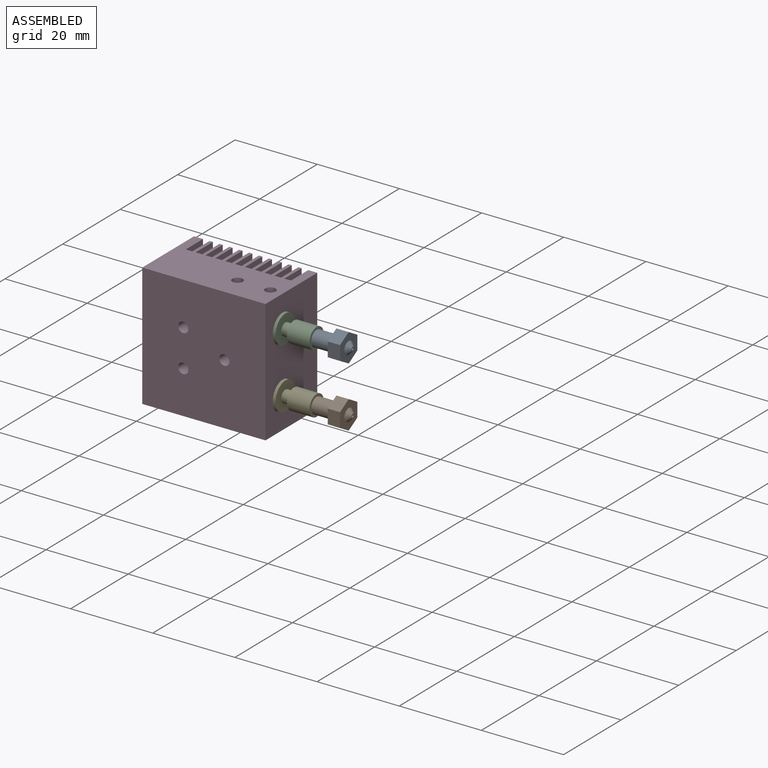
[diagram: assembled view]
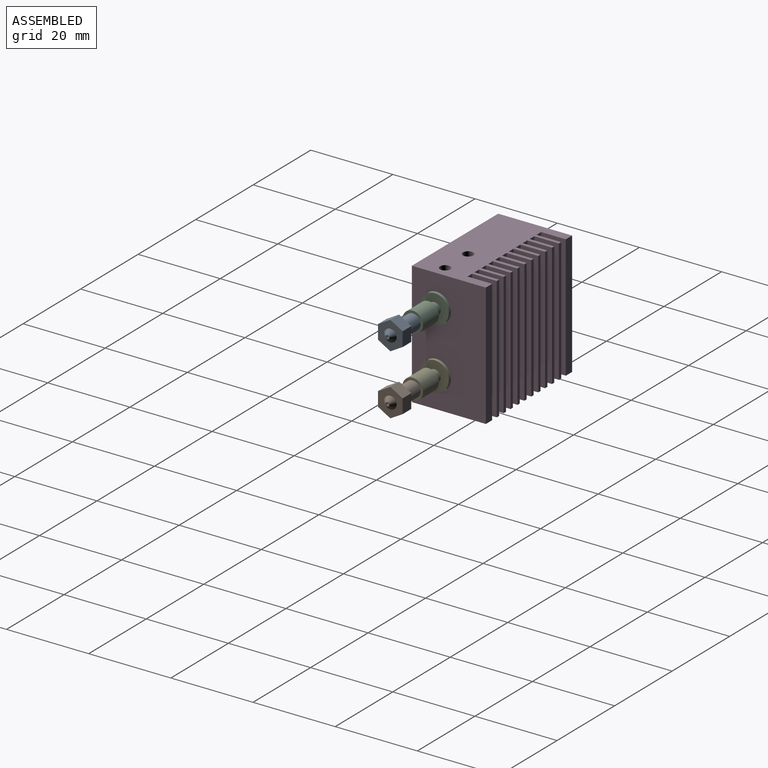
[diagram: assembled view, second angle]
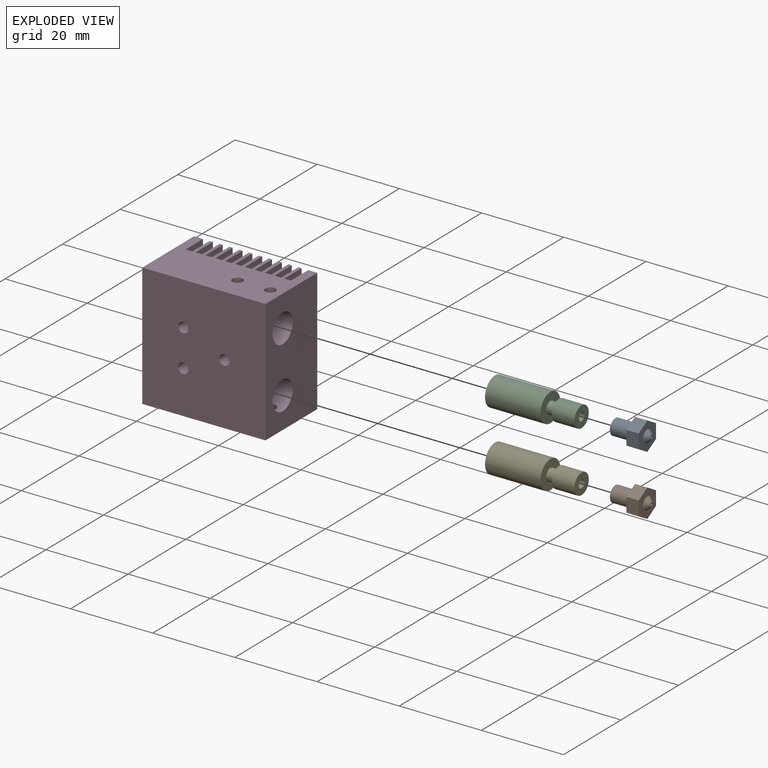
[diagram: exploded view]
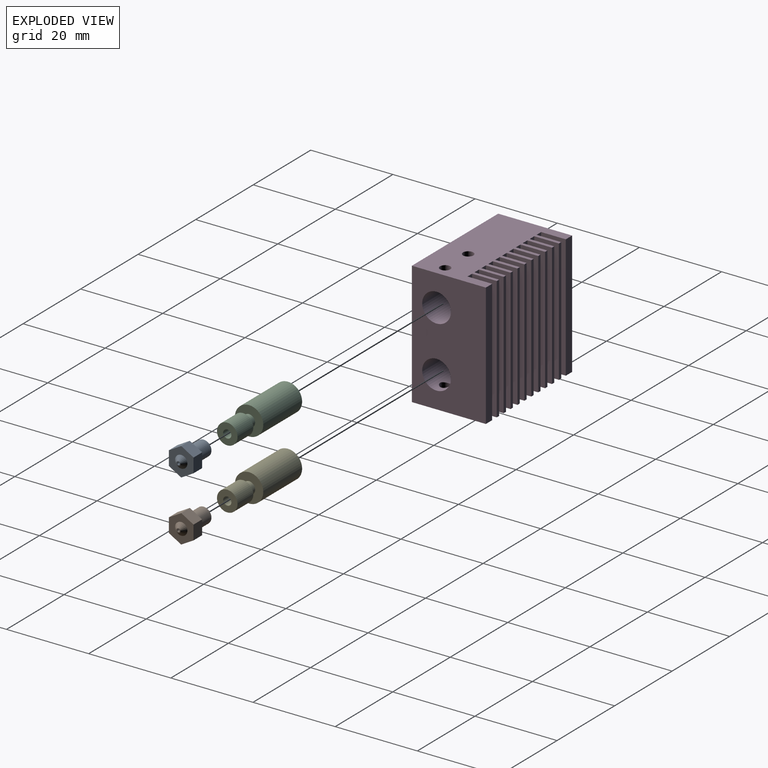
[diagram: exploded view, second angle]
ASSEMBLY  parts=5 mates=4
PART A: 15 faces, bbox 6.9x6x8.8 mm
  f0: plane 3x3mm, normal (0.87,0.5,0), area 10.4mm2, adj f1,f5,f6,f7
  f1: plane 3.46x3mm, normal (0,1,0), area 10.4mm2, adj f0,f2,f6,f7
  f2: plane 3x3mm, normal (-0.87,0.5,0), area 10.4mm2, adj f1,f3,f6,f7
  f3: plane 3x3mm, normal (-0.87,-0.5,0), area 10.4mm2, adj f2,f4,f6,f7
  f4: plane 3.46x3mm, normal (0,-1,0), area 10.4mm2, adj f3,f5,f6,f7
  f5: plane 3x3mm, normal (0.87,-0.5,0), area 10.4mm2, adj f0,f4,f6,f7
  f6: plane 6.93x6mm, normal (0,0,-1), area 24mm2, adj f0,f1,f2,f3,f4,f5,f14
  f7: plane 6.93x6mm, normal (0,0,1), area 19.8mm2, adj f0,f1,f2,f3,f4,f5,f8
  f8: cylinder r=1.9mm len=4.8mm, axis (0,0,-1), area 57.3mm2, adj f7,f9
  f9: plane 3.8x3.8mm, normal (0,0,1), area 9.6mm2, adj f8,f10
  f10: cylinder r=0.75mm len=7.8mm, axis (0,0,1), area 36.8mm2, adj f9,f13
  f11: cylinder r=0.3mm len=1mm, axis (0,0,1), area 1.9mm2, adj f12,f13
  f12: plane 1.02x1.02mm, normal (0,0,-1), area 0.5mm2, adj f11,f14
  f13: plane 1.5x1.5mm, normal (0,0,1), area 1.5mm2, adj f10,f11
  f14: cone r=0.51mm half-angle=45deg, axis (0,0,1), area 9mm2, adj f6,f12
PART B: same geometry as A
PART C: 10 faces, bbox 6.9x6.9x21.1 mm
  f0: cone r=0mm half-angle=59deg, axis (0,0,1), area 12.5mm2, adj f8,f9
  f1: cylinder r=3.45mm len=13.5mm, axis (0,0,-1), area 292.6mm2, adj f2,f3
  f2: plane 6.9x6.9mm, normal (0,0,1), area 23.5mm2, adj f1,f8
  f3: plane 6.9x6.9mm, normal (0,0,-1), area 30.6mm2, adj f1,f4
  f4: cylinder r=1.47mm len=2.95mm, axis (0,0,1), area 19.5mm2, adj f3,f7
  f5: cylinder r=2.5mm len=5.5mm, axis (0,0,1), area 86.4mm2, adj f6,f7
  f6: plane 5x5mm, normal (0,0,-1), area 16.5mm2, adj f5,f9
  f7: plane 5x5mm, normal (0,0,1), area 12.8mm2, adj f4,f5
  f8: cylinder r=2.1mm len=4.2mm, axis (0,0,1), area 52.8mm2, adj f0,f2
  f9: cylinder r=1mm len=16.44mm, axis (0,0,1), area 103.3mm2, adj f0,f6
PART D: 70 faces, bbox 30x18x30 mm
  f0: cylinder r=3.5mm len=14mm, axis (1,0,0), area 297.9mm2, adj f26,f58,f68,f69
  f1: cylinder r=3.5mm len=14mm, axis (1,0,0), area 297.9mm2, adj f26,f59,f66,f67
  f2: cylinder r=2.1mm len=7.52mm, axis (-1,0,0), area 94.7mm2, adj f5,f59,f65
  f3: cylinder r=2.1mm len=7.52mm, axis (-1,0,0), area 94.7mm2, adj f4,f58,f63
  f4: cone r=0mm half-angle=59deg, axis (-1,0,0), area 42.5mm2, adj f3,f56
  f5: cone r=0mm half-angle=59deg, axis (-1,0,0), area 42.5mm2, adj f2,f57
  f6: plane 30x6mm, normal (1,0,0), area 180mm2, adj f7,f53,f54,f55
  f7: plane 30x0.8mm, normal (0,1,0), area 24mm2, adj f6,f8,f54,f55
  f8: plane 30x6mm, normal (-1,0,0), area 180mm2, adj f7,f9,f54,f55
  f9: plane 30x1.6mm, normal (0,1,0), area 48mm2, adj f8,f10,f54,f55
  f10: plane 30x6mm, normal (1,0,0), area 180mm2, adj f9,f11,f54,f55
  f11: plane 30x0.8mm, normal (0,1,0), area 24mm2, adj f10,f12,f54,f55
  f12: plane 30x6mm, normal (-1,0,0), area 180mm2, adj f11,f13,f54,f55
  f13: plane 30x1.6mm, normal (0,1,0), area 48mm2, adj f12,f14,f54,f55
  f14: plane 30x6mm, normal (1,0,0), area 180mm2, adj f13,f15,f54,f55
  f15: plane 30x0.8mm, normal (0,1,0), area 24mm2, adj f14,f16,f54,f55
  f16: plane 30x6mm, normal (-1,0,0), area 180mm2, adj f15,f17,f54,f55
  f17: plane 30x1.6mm, normal (0,1,0), area 48mm2, adj f16,f18,f54,f55
  f18: plane 30x6mm, normal (1,0,0), area 180mm2, adj f17,f19,f54,f55
  f19: plane 30x0.8mm, normal (0,1,0), area 24mm2, adj f18,f20,f54,f55
  f20: plane 30x6mm, normal (-1,0,0), area 180mm2, adj f19,f21,f54,f55
  f21: plane 30x1.6mm, normal (0,1,0), area 48mm2, adj f20,f22,f54,f55
  f22: plane 30x6mm, normal (1,0,0), area 180mm2, adj f21,f23,f54,f55
  f23: plane 30x2.2mm, normal (0,1,0), area 66mm2, adj f22,f24,f54,f55
  f24: plane 30x18mm, normal (-1,0,0), area 439.5mm2, adj f23,f25,f54,f55,f56,f57
  f25: plane 30x30mm, normal (0,-1,0), area 885.3mm2, adj f24,f26,f54,f55,f61,f63,f65
  f26: plane 30x18mm, normal (1,0,0), area 463mm2, adj f0,f1,f25,f27,f54,f55
  f27: plane 30x2.2mm, normal (0,1,0), area 66mm2, adj f26,f28,f54,f55
  f28: plane 30x6mm, normal (-1,0,0), area 180mm2, adj f27,f29,f54,f55
  f29: plane 30x1.6mm, normal (0,1,0), area 48mm2, adj f28,f30,f54,f55
  f30: plane 30x6mm, normal (1,0,0), area 180mm2, adj f29,f31,f54,f55
  f31: plane 30x0.8mm, normal (0,1,0), area 24mm2, adj f30,f32,f54,f55
  f32: plane 30x6mm, normal (-1,0,0), area 180mm2, adj f31,f33,f54,f55
  f33: plane 30x1.6mm, normal (0,1,0), area 48mm2, adj f32,f34,f54,f55
  f34: plane 30x6mm, normal (1,0,0), area 180mm2, adj f33,f35,f54,f55
  f35: plane 30x0.8mm, normal (0,1,0), area 24mm2, adj f34,f36,f54,f55
  f36: plane 30x6mm, normal (-1,0,0), area 180mm2, adj f35,f37,f54,f55
  f37: plane 30x1.6mm, normal (0,1,0), area 48mm2, adj f36,f38,f54,f55
  f38: plane 30x6mm, normal (1,0,0), area 180mm2, adj f37,f39,f54,f55
  f39: plane 30x0.8mm, normal (0,1,0), area 24mm2, adj f38,f40,f54,f55
  f40: plane 30x6mm, normal (-1,0,0), area 180mm2, adj f39,f41,f54,f55
  f41: plane 30x1.6mm, normal (0,1,0), area 48mm2, adj f40,f42,f54,f55
  f42: plane 30x6mm, normal (1,0,0), area 180mm2, adj f41,f43,f54,f55
  f43: plane 30x0.8mm, normal (0,1,0), area 24mm2, adj f42,f44,f54,f55
  f44: plane 30x6mm, normal (-1,0,0), area 180mm2, adj f43,f45,f54,f55
  f45: plane 30x1.6mm, normal (0,1,0), area 48mm2, adj f44,f46,f54,f55
  f46: plane 30x6mm, normal (1,0,0), area 180mm2, adj f45,f47,f54,f55
  f47: plane 30x0.8mm, normal (0,1,0), area 24mm2, adj f46,f48,f54,f55
  f48: plane 30x6mm, normal (-1,0,0), area 180mm2, adj f47,f49,f54,f55
  f49: plane 30x1.6mm, normal (0,1,0), area 48mm2, adj f48,f50,f54,f55
  f50: plane 30x6mm, normal (1,0,0), area 180mm2, adj f49,f51,f54,f55
  f51: plane 30x0.8mm, normal (0,1,0), area 24mm2, adj f50,f52,f54,f55
  f52: plane 30x6mm, normal (-1,0,0), area 180mm2, adj f51,f53,f54,f55
  f53: plane 30x1.6mm, normal (0,1,0), area 48mm2, adj f6,f52,f54,f55
  f54: plane 30x18mm, normal (0,0,1), area 424.6mm2, adj f6,f7,f8,f9,f10,f11,f12,f13
  f55: plane 30x18mm, normal (0,0,-1), area 424.6mm2, adj f6,f7,f8,f9,f10,f11,f12,f13
  f56: cylinder r=4mm len=8mm, axis (-1,0,0), area 163.4mm2, adj f4,f24
  f57: cylinder r=4mm len=8mm, axis (-1,0,0), area 163.4mm2, adj f5,f24
  f58: cone r=0mm half-angle=59deg, axis (1,0,0), area 28.7mm2, adj f0,f3
  f59: cone r=0mm half-angle=59deg, axis (1,0,0), area 28.7mm2, adj f1,f2
  f60: cone r=0mm half-angle=59deg, axis (0,-1,0), area 5.7mm2, adj f61
  f61: cylinder r=1.25mm len=8mm, axis (0,-1,0), area 62.8mm2, adj f25,f60
  f62: cone r=0mm half-angle=59deg, axis (0,-1,0), area 5.7mm2, adj f63
  f63: cylinder r=1.25mm len=8mm, axis (0,-1,0), area 58.1mm2, adj f3,f25,f62
  f64: cone r=0mm half-angle=59deg, axis (0,-1,0), area 5.7mm2, adj f65
  f65: cylinder r=1.25mm len=8mm, axis (0,-1,0), area 58.1mm2, adj f2,f25,f64
  f66: cylinder r=1.25mm len=4.35mm, axis (0,0,-1), area 33.3mm2, adj f1,f55
  f67: cylinder r=1.25mm len=4.35mm, axis (0,0,-1), area 33.3mm2, adj f1,f55
  f68: cylinder r=1.25mm len=4.35mm, axis (0,0,1), area 33.3mm2, adj f0,f54
  f69: cylinder r=1.25mm len=4.35mm, axis (0,0,1), area 33.3mm2, adj f0,f54
PART E: same geometry as C
PLACE A rot(axis=(0,-1,0),90deg) t=(0.42,-8.2,23.52)mm
PLACE B rot(axis=(0,-1,0),90deg) t=(0.42,-8.2,8.77)mm
PLACE C rot(axis=(0,-1,0),90deg) t=(-11.98,-8.2,23.52)mm
PLACE D t=(-27.64,-5.2,1.14)mm fixed
PLACE E rot(axis=(-0.71,0,0.71),180deg) t=(-11.98,-8.2,8.77)mm
MATE fastened A.f10 <-> C.f0  axis (-1,0,0) through (-4.38,-8.2,23.52)mm
MATE fastened E.f0 <-> D.f1  axis (-1,0,0) through (-25.48,-8.2,8.77)mm
MATE fastened B.f10 <-> E.f5  axis (-1,0,0) through (-4.38,-8.2,8.77)mm
MATE fastened C.f0 <-> D.f0  axis (-1,0,0) through (-25.48,-8.2,23.52)mm
